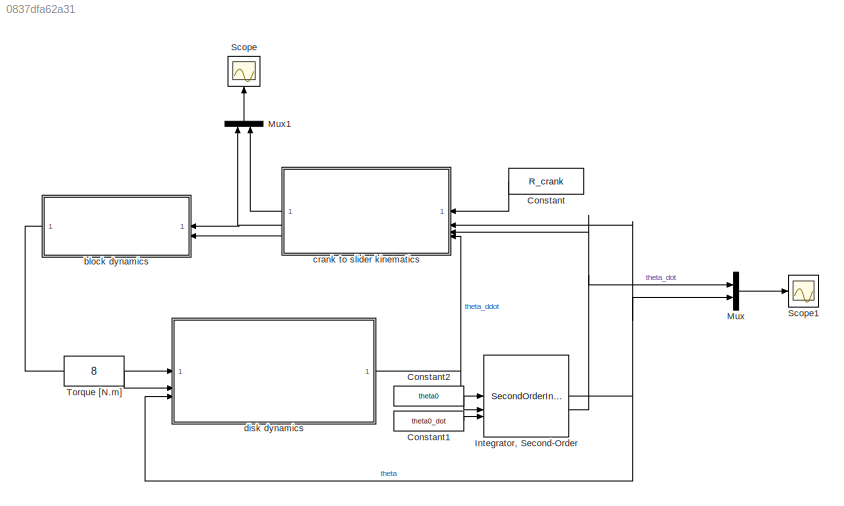
MODEL slx_0837dfa62a31
KIND model
CONFIG AbsTol = auto
CONFIG EnableMultiTasking = off
CONFIG FixedStep = auto
CONFIG MaxStep = auto
CONFIG MinStep = auto
CONFIG RelTol = 1e-3
CONFIG SampleTimeConstraint = Unconstrained
CONFIG SolverName = VariableStepAuto
CONFIG StartTime = 0.0
CONFIG StopTime = 10
BLOCK [Constant] Constant
  NameLocation = top
  Value = R_crank
BLOCK [Constant] Constant1
  Value = theta0_dot
BLOCK [Constant] Constant2
  Value = theta0
BLOCK [SecondOrderIntegrator] Integrator, Second-Order
  ICSourceDXDT = external
  ICSourceX = external
BLOCK [Mux] Mux
  DisplayOption = bar
  Inputs = 2
BLOCK [Mux] Mux1
  DisplayOption = bar
  Inputs = 2
  NameLocation = right
BLOCK [Scope] Scope
  Floating = off
  NameLocation = right
  NumInputPorts = 1
  ScopeSpecificationString = Simulink.scopes.TimeScopeBlockCfg('CurrentConfiguration', extmgr.ConfigurationSet(extmgr.Configuration('Core','General UI',true),extmgr.Configuration('Core','Source UI',true),extmgr.Configuration('Sources','WiredSimulink',true),extmgr.Configuration('Visuals','Time Domain',true,'SerializedDisplays',{struct('MinYLimReal','-0.80631','MaxYLimReal','0.80286','YLabelReal','','MinYLimMag','0.00000','MaxY...<+1497ch>
BLOCK [Scope] Scope1
  Floating = off
  NumInputPorts = 1
  ScopeSpecificationString = Simulink.scopes.TimeScopeBlockCfg('CurrentConfiguration', extmgr.ConfigurationSet(extmgr.Configuration('Core','General UI',true),extmgr.Configuration('Core','Source UI',true),extmgr.Configuration('Sources','WiredSimulink',true,'DataLoggingVariableName','ScopeData1'),extmgr.Configuration('Visuals','Time Domain',true,'SerializedDisplays',{struct('MinYLimReal','-1.30375','MaxYLimReal','30.71295','YLa...<+1515ch>
BLOCK [Constant] Torque [N.m]
  Value = 8
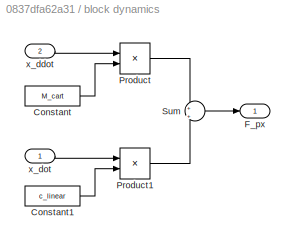
BLOCK [SubSystem] block dynamics
  NameLocation = top
BLOCK [Constant] block dynamics/Constant
  Value = M_cart
BLOCK [Constant] block dynamics/Constant1
  Value = c_linear
BLOCK [Outport] block dynamics/F_px
BLOCK [Product] block dynamics/Product
BLOCK [Product] block dynamics/Product1
BLOCK [Sum] block dynamics/Sum
  Inputs = +|+
BLOCK [Inport] block dynamics/x_ddot
  Port = 2
BLOCK [Inport] block dynamics/x_dot
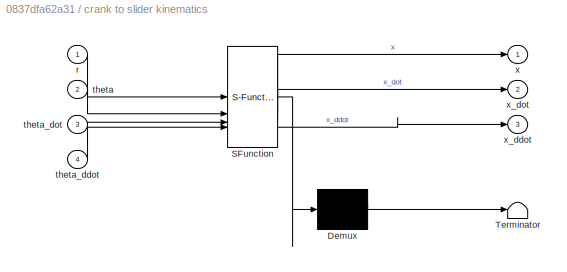
BLOCK [SubSystem] crank to slider kinematics
  ErrorFcn = Stateflow.Translate.translate
  NameLocation = top
  PermitHierarchicalResolution = ExplicitOnly
  SFBlockType = MATLAB Function
  TreatAsAtomicUnit = on
BLOCK [Demux] crank to slider kinematics/ Demux 
  Outputs = 1
BLOCK [S-Function] crank to slider kinematics/ SFunction 
  EnableBusSupport = on
  FunctionName = sf_sfun
  PortCounts = [4 4]
  SFcnIsStateOwnerBlock = off
  SFunctionDeploymentMode = off
  Tag = Stateflow S-Function 2
BLOCK [Terminator] crank to slider kinematics/ Terminator 
BLOCK [Inport] crank to slider kinematics/r
BLOCK [Inport] crank to slider kinematics/theta
  Port = 2
BLOCK [Inport] crank to slider kinematics/theta_ddot
  Port = 4
BLOCK [Inport] crank to slider kinematics/theta_dot
  Port = 3
BLOCK [Outport] crank to slider kinematics/x
BLOCK [Outport] crank to slider kinematics/x_ddot
  Port = 3
BLOCK [Outport] crank to slider kinematics/x_dot
  Port = 2
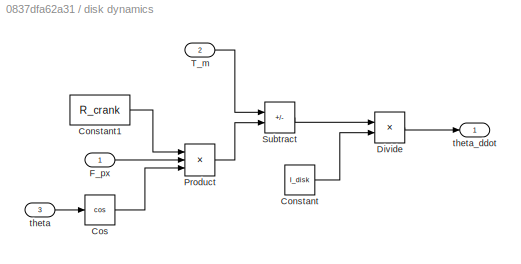
BLOCK [SubSystem] disk dynamics
BLOCK [Constant] disk dynamics/Constant
  Value = I_disk
BLOCK [Constant] disk dynamics/Constant1
  Value = R_crank
BLOCK [Trigonometry] disk dynamics/Cos
  Operator = cos
BLOCK [Product] disk dynamics/Divide
  Inputs = */
BLOCK [Inport] disk dynamics/F_px
BLOCK [Product] disk dynamics/Product
  Inputs = 3
BLOCK [Sum] disk dynamics/Subtract
  IconShape = rectangular
  Inputs = +-
BLOCK [Inport] disk dynamics/T_m
  Port = 2
BLOCK [Inport] disk dynamics/theta
  Port = 3
BLOCK [Outport] disk dynamics/theta_ddot
LINE Constant1:1 -> Integrator, Second-Order:3
LINE Constant2:1 -> Integrator, Second-Order:2
LINE Constant:1 -> crank to slider kinematics:1
NET Integrator, Second-Order:1 -> Mux:2, crank to slider kinematics:2, disk dynamics:3
NET Integrator, Second-Order:2 -> Mux:1, crank to slider kinematics:3
LINE Mux1:1 -> Scope:1
LINE Mux:1 -> Scope1:1
LINE Torque [N.m]:1 -> disk dynamics:2
LINE block dynamics/Constant1:1 -> block dynamics/Product1:2
LINE block dynamics/Constant:1 -> block dynamics/Product:2
LINE block dynamics/Product1:1 -> block dynamics/Sum:2
LINE block dynamics/Product:1 -> block dynamics/Sum:1
LINE block dynamics/Sum:1 -> block dynamics/F_px:1
LINE block dynamics/x_ddot:1 -> block dynamics/Product:1
LINE block dynamics/x_dot:1 -> block dynamics/Product1:1
LINE block dynamics:1 -> disk dynamics:1
LINE crank to slider kinematics:1 -> Mux1:2
NET crank to slider kinematics:2 -> Mux1:1, block dynamics:1
LINE crank to slider kinematics:3 -> block dynamics:2
LINE disk dynamics/Constant1:1 -> disk dynamics/Product:1
LINE disk dynamics/Constant:1 -> disk dynamics/Divide:2
LINE disk dynamics/Cos:1 -> disk dynamics/Product:3
LINE disk dynamics/Divide:1 -> disk dynamics/theta_ddot:1
LINE disk dynamics/F_px:1 -> disk dynamics/Product:2
LINE disk dynamics/Product:1 -> disk dynamics/Subtract:2
LINE disk dynamics/Subtract:1 -> disk dynamics/Divide:1
LINE disk dynamics/T_m:1 -> disk dynamics/Subtract:1
LINE disk dynamics/theta:1 -> disk dynamics/Cos:1
NET disk dynamics:1 -> Integrator, Second-Order:1, crank to slider kinematics:4
note: NET lines group one-source signal fan-out (src -> all destinations, sorted); 1:1 wires keep LINE
CHART crank to slider kinematics states=1 transitions=1
  STATE_LABEL 'eML_blk_kernel()'
  STATE_LABEL 'SCRIPT:\nfunction [x, x_dot, x_ddot] = kinematics(r, theta, theta_dot, theta_ddot)\n\nx = r * sin(theta);\nx_dot = r * theta_dot*cos(theta);\nx_ddot = r*(theta_ddot * cos(theta) - theta_dot^2 * sin(theta));\n\nend\n'
CHART  states=0 transitions=0
